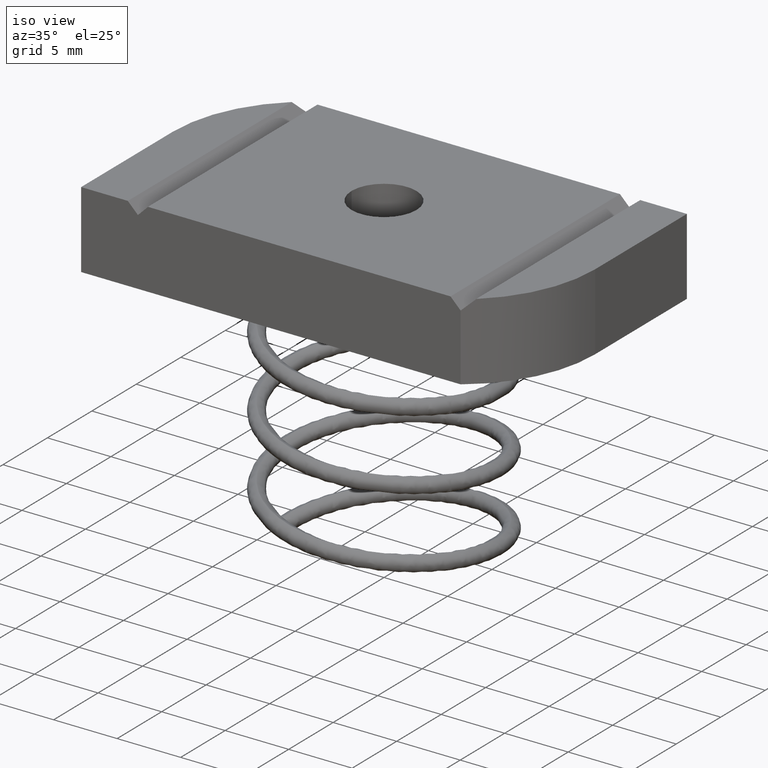
[diagram: clean part render]
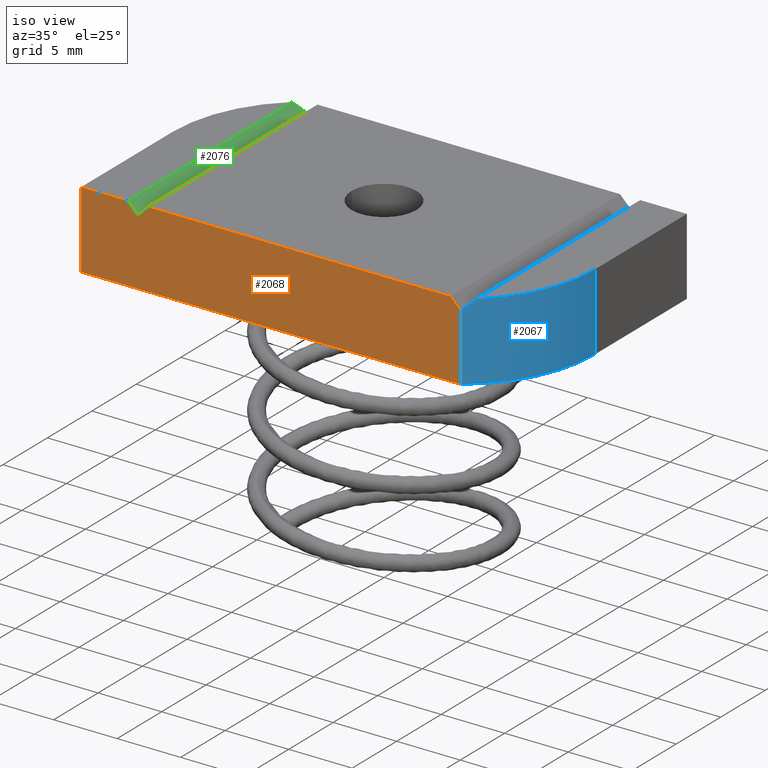
[diagram: same view with three faces highlighted in distinct colors, each labeled with its STEP entity id]
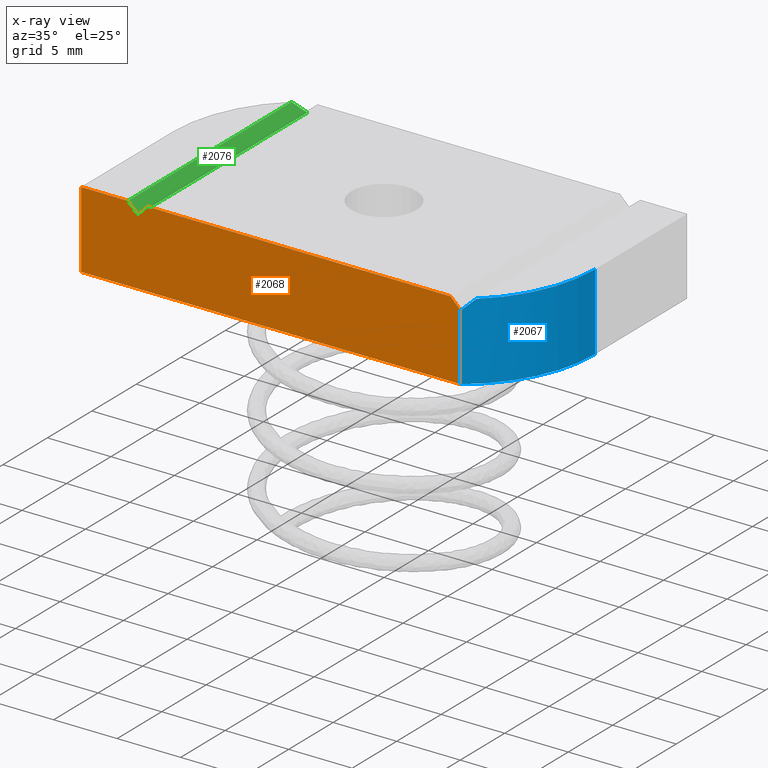
[diagram: x-ray of the same camera — body ghosted, the three highlighted faces saturated]
A machine part, iso view with three faces highlighted in distinct colors.
The next image is the same camera in x-ray (body ghosted, the three faces saturated) — at least one of them is partly hidden behind the body in this view.
Their STEP definitions:

[orange] entity #2068 — the highlighted planar face has unit normal (0, 1, 0).
#78 = CARTESIAN_POINT ( 'NONE',  ( -0.6760000000000001600, -0.3750000000000000600, 0.1189999999999999900 ) ) ;
#80 = PLANE ( 'NONE',  #1320 ) ;
#83 = DIRECTION ( 'NONE',  ( 0.0000000000000000000, 1.000000000000000000, 0.0000000000000000000 ) ) ;
#84 = DIRECTION ( 'NONE',  ( 0.0000000000000000000, -0.0000000000000000000, 1.000000000000000000 ) ) ;
#201 = EDGE_CURVE ( 'NONE', #1017, #1014, #753, .T. ) ;
#210 = ORIENTED_EDGE ( 'NONE', *, *, #1328, .T. ) ;
#215 = ORIENTED_EDGE ( 'NONE', *, *, #1329, .F. ) ;
#242 = ORIENTED_EDGE ( 'NONE', *, *, #201, .T. ) ;
#269 = EDGE_LOOP ( 'NONE', ( #583, #578, #590, #611, #748, #215, #242, #210 ) ) ;
#578 = ORIENTED_EDGE ( 'NONE', *, *, #772, .F. ) ;
#583 = ORIENTED_EDGE ( 'NONE', *, *, #1324, .F. ) ;
#590 = ORIENTED_EDGE ( 'NONE', *, *, #1973, .F. ) ;
#611 = ORIENTED_EDGE ( 'NONE', *, *, #1326, .F. ) ;
#634 = VECTOR ( 'NONE', #989, 39.37007874015748900 ) ;
#722 = LINE ( 'NONE', #1156, #723 ) ;
#723 = VECTOR ( 'NONE', #1057, 39.37007874015748100 ) ;
#724 = LINE ( 'NONE', #1147, #1751 ) ;
#727 = LINE ( 'NONE', #1078, #729 ) ;
#728 = LINE ( 'NONE', #1081, #732 ) ;
#729 = VECTOR ( 'NONE', #879, 39.37007874015748100 ) ;
#732 = VECTOR ( 'NONE', #909, 39.37007874015748900 ) ;
#733 = LINE ( 'NONE', #1158, #634 ) ;
#743 = VECTOR ( 'NONE', #986, 39.37007874015748100 ) ;
#748 = ORIENTED_EDGE ( 'NONE', *, *, #1327, .F. ) ;
#753 = LINE ( 'NONE', #1082, #743 ) ;
#772 = EDGE_CURVE ( 'NONE', #1012, #918, #722, .T. ) ;
#787 = DIRECTION ( 'NONE',  ( 1.000000000000000000, 0.0000000000000000000, 0.0000000000000000000 ) ) ;
#788 = CARTESIAN_POINT ( 'NONE',  ( -0.6760000000000001600, -0.3750000000000000600, 0.1189999999999999900 ) ) ;
#879 = DIRECTION ( 'NONE',  ( -0.0000000000000000000, -0.0000000000000000000, -1.000000000000000000 ) ) ;
#905 = CARTESIAN_POINT ( 'NONE',  ( -0.5000000000000000000, -0.3750000000000000600, 0.08774999999999996700 ) ) ;
#909 = DIRECTION ( 'NONE',  ( 0.7071067811865476800, 0.0000000000000000000, 0.7071067811865472400 ) ) ;
#917 = VERTEX_POINT ( 'NONE', #905 ) ;
#918 = VERTEX_POINT ( 'NONE', #1091 ) ;
#928 = VERTEX_POINT ( 'NONE', #1039 ) ;
#933 = VERTEX_POINT ( 'NONE', #1097 ) ;
#986 = DIRECTION ( 'NONE',  ( -0.0000000000000000000, -0.0000000000000000000, -1.000000000000000000 ) ) ;
#989 = DIRECTION ( 'NONE',  ( 0.7071067811865440200, 0.0000000000000000000, -0.7071067811865509000 ) ) ;
#998 = CARTESIAN_POINT ( 'NONE',  ( -0.6760000000000001600, -0.3750000000000000600, 0.1189999999999999900 ) ) ;
#1008 = DIRECTION ( 'NONE',  ( 1.000000000000000000, 0.0000000000000000000, 0.0000000000000000000 ) ) ;
#1012 = VERTEX_POINT ( 'NONE', #1164 ) ;
#1014 = VERTEX_POINT ( 'NONE', #1176 ) ;
#1017 = VERTEX_POINT ( 'NONE', #1127 ) ;
#1019 = VERTEX_POINT ( 'NONE', #1077 ) ;
#1039 = CARTESIAN_POINT ( 'NONE',  ( 0.5000000000000001100, -0.3750000000000000600, -0.1189999999999999900 ) ) ;
#1057 = DIRECTION ( 'NONE',  ( 0.7071067811865465700, 0.0000000000000000000, -0.7071067811865484600 ) ) ;
#1077 = CARTESIAN_POINT ( 'NONE',  ( -0.4687499999999999400, -0.3750000000000000600, 0.1189999999999999900 ) ) ;
#1078 = CARTESIAN_POINT ( 'NONE',  ( 0.5000000000000001100, -0.3750000000000000600, 0.1189999999999999900 ) ) ;
#1081 = CARTESIAN_POINT ( 'NONE',  ( -0.5000000000000000000, -0.3750000000000000600, 0.08774999999999996700 ) ) ;
#1082 = CARTESIAN_POINT ( 'NONE',  ( -0.6760000000000001600, -0.3750000000000000600, 0.1189999999999999900 ) ) ;
#1091 = CARTESIAN_POINT ( 'NONE',  ( 0.5000000000000001100, -0.3750000000000000600, 0.08774999999999987000 ) ) ;
#1097 = CARTESIAN_POINT ( 'NONE',  ( -0.5312499999999996700, -0.3750000000000000600, 0.1189999999999999800 ) ) ;
#1127 = CARTESIAN_POINT ( 'NONE',  ( -0.6760000000000001600, -0.3750000000000000600, 0.1189999999999999900 ) ) ;
#1147 = CARTESIAN_POINT ( 'NONE',  ( -0.6760000000000001600, -0.3750000000000000600, -0.1189999999999999900 ) ) ;
#1154 = DIRECTION ( 'NONE',  ( 1.000000000000000000, 0.0000000000000000000, 0.0000000000000000000 ) ) ;
#1156 = CARTESIAN_POINT ( 'NONE',  ( 0.4687499999999999400, -0.3750000000000000600, 0.1189999999999999900 ) ) ;
#1158 = CARTESIAN_POINT ( 'NONE',  ( -0.5312499999999996700, -0.3750000000000000600, 0.1189999999999999800 ) ) ;
#1164 = CARTESIAN_POINT ( 'NONE',  ( 0.4687499999999999400, -0.3750000000000000600, 0.1189999999999999900 ) ) ;
#1176 = CARTESIAN_POINT ( 'NONE',  ( -0.6760000000000001600, -0.3750000000000000600, -0.1189999999999999900 ) ) ;
#1320 = AXIS2_PLACEMENT_3D ( 'NONE', #78, #83, #84 ) ;
#1324 = EDGE_CURVE ( 'NONE', #918, #928, #727, .T. ) ;
#1326 = EDGE_CURVE ( 'NONE', #917, #1019, #728, .T. ) ;
#1327 = EDGE_CURVE ( 'NONE', #933, #917, #733, .T. ) ;
#1328 = EDGE_CURVE ( 'NONE', #1014, #928, #724, .T. ) ;
#1329 = EDGE_CURVE ( 'NONE', #1017, #933, #1752, .T. ) ;
#1751 = VECTOR ( 'NONE', #1154, 39.37007874015748100 ) ;
#1752 = LINE ( 'NONE', #998, #1753 ) ;
#1753 = VECTOR ( 'NONE', #1008, 39.37007874015748100 ) ;
#1759 = LINE ( 'NONE', #788, #1760 ) ;
#1760 = VECTOR ( 'NONE', #787, 39.37007874015748100 ) ;
#1973 = EDGE_CURVE ( 'NONE', #1019, #1012, #1759, .T. ) ;
#1996 = FACE_OUTER_BOUND ( 'NONE', #269, .T. ) ;
#2068 = ADVANCED_FACE ( 'NONE', ( #1996 ), #80, .F. ) ;

[blue] entity #2067 — the highlighted cylindrical surface (partial cylindrical patch) has radius 10.7742 mm, axis along (-0, -0, -1).
#66 = DIRECTION ( 'NONE',  ( -1.000000000000000000, 0.0000000000000000000, 0.0000000000000000000 ) ) ;
#74 = CARTESIAN_POINT ( 'NONE',  ( 0.2518181818181817700, -0.03099999999999995500, 0.1189999999999999900 ) ) ;
#75 = DIRECTION ( 'NONE',  ( -0.0000000000000000000, -0.0000000000000000000, -1.000000000000000000 ) ) ;
#196 = EDGE_CURVE ( 'NONE', #944, #1030, #1311, .T. ) ;
#202 = EDGE_CURVE ( 'NONE', #928, #945, #621, .T. ) ;
#212 = ORIENTED_EDGE ( 'NONE', *, *, #196, .F. ) ;
#240 = ORIENTED_EDGE ( 'NONE', *, *, #756, .F. ) ;
#254 = EDGE_LOOP ( 'NONE', ( #212, #607, #276, #580, #240 ) ) ;
#276 = ORIENTED_EDGE ( 'NONE', *, *, #1324, .T. ) ;
#580 = ORIENTED_EDGE ( 'NONE', *, *, #202, .T. ) ;
#607 = ORIENTED_EDGE ( 'NONE', *, *, #1333, .T. ) ;
#621 = CIRCLE ( 'NONE', #2077, 0.4241818181818182700 ) ;
#625 = LINE ( 'NONE', #964, #630 ) ;
#630 = VECTOR ( 'NONE', #965, 39.37007874015748100 ) ;
#727 = LINE ( 'NONE', #1078, #729 ) ;
#729 = VECTOR ( 'NONE', #879, 39.37007874015748100 ) ;
#756 = EDGE_CURVE ( 'NONE', #1030, #945, #625, .T. ) ;
#792 = CARTESIAN_POINT ( 'NONE',  ( 0.5000000000000001100, -0.3750000000000000600, 0.08774999999999987000 ) ) ;
#793 = CARTESIAN_POINT ( 'NONE',  ( 0.5108032315010989600, -0.3672059138483087000, 0.09855323150109894500 ) ) ;
#794 = CARTESIAN_POINT ( 'NONE',  ( 0.5212276018830124300, -0.3589119345894123400, 0.1089776018830126100 ) ) ;
#813 = CARTESIAN_POINT ( 'NONE',  ( 0.2518181818181817700, -0.03099999999999995500, 0.1189999999999999900 ) ) ;
#879 = DIRECTION ( 'NONE',  ( -0.0000000000000000000, -0.0000000000000000000, -1.000000000000000000 ) ) ;
#918 = VERTEX_POINT ( 'NONE', #1091 ) ;
#928 = VERTEX_POINT ( 'NONE', #1039 ) ;
#944 = VERTEX_POINT ( 'NONE', #1098 ) ;
#945 = VERTEX_POINT ( 'NONE', #1046 ) ;
#964 = CARTESIAN_POINT ( 'NONE',  ( 0.6760000000000001600, -0.03099999999999990600, 0.1189999999999999900 ) ) ;
#965 = DIRECTION ( 'NONE',  ( -0.0000000000000000000, -0.0000000000000000000, -1.000000000000000000 ) ) ;
#991 = DIRECTION ( 'NONE',  ( 0.0000000000000000000, 0.0000000000000000000, 1.000000000000000000 ) ) ;
#992 = DIRECTION ( 'NONE',  ( -1.000000000000000000, 0.0000000000000000000, 0.0000000000000000000 ) ) ;
#1030 = VERTEX_POINT ( 'NONE', #1178 ) ;
#1039 = CARTESIAN_POINT ( 'NONE',  ( 0.5000000000000001100, -0.3750000000000000600, -0.1189999999999999900 ) ) ;
#1046 = CARTESIAN_POINT ( 'NONE',  ( 0.6760000000000001600, -0.03099999999999990600, -0.1189999999999999900 ) ) ;
#1078 = CARTESIAN_POINT ( 'NONE',  ( 0.5000000000000001100, -0.3750000000000000600, 0.1189999999999999900 ) ) ;
#1080 = DIRECTION ( 'NONE',  ( 0.0000000000000000000, 0.0000000000000000000, 1.000000000000000000 ) ) ;
#1083 = CARTESIAN_POINT ( 'NONE',  ( 0.2518181818181817700, -0.03099999999999995500, -0.1189999999999999900 ) ) ;
#1091 = CARTESIAN_POINT ( 'NONE',  ( 0.5000000000000001100, -0.3750000000000000600, 0.08774999999999987000 ) ) ;
#1098 = CARTESIAN_POINT ( 'NONE',  ( 0.5312499999999997800, -0.3501364502272287200, 0.1189999999999999900 ) ) ;
#1114 = CARTESIAN_POINT ( 'NONE',  ( 0.5312499999999997800, -0.3501364502272287200, 0.1189999999999999900 ) ) ;
#1162 = DIRECTION ( 'NONE',  ( -1.000000000000000000, 0.0000000000000000000, 0.0000000000000000000 ) ) ;
#1178 = CARTESIAN_POINT ( 'NONE',  ( 0.6760000000000001600, -0.03099999999999990600, 0.1189999999999999900 ) ) ;
#1311 = CIRCLE ( 'NONE', #1335, 0.4241818181818182700 ) ;
#1319 = AXIS2_PLACEMENT_3D ( 'NONE', #74, #75, #66 ) ;
#1324 = EDGE_CURVE ( 'NONE', #918, #928, #727, .T. ) ;
#1333 = EDGE_CURVE ( 'NONE', #944, #918, #2050, .T. ) ;
#1335 = AXIS2_PLACEMENT_3D ( 'NONE', #813, #991, #992 ) ;
#1994 = FACE_OUTER_BOUND ( 'NONE', #254, .T. ) ;
#2001 = CYLINDRICAL_SURFACE ( 'NONE', #1319, 0.4241818181818182700 ) ;
#2050 =( BOUNDED_CURVE ( )  B_SPLINE_CURVE ( 3, ( #1114, #794, #793, #792 ),
 .UNSPECIFIED., .F., .T. ) 
 B_SPLINE_CURVE_WITH_KNOTS ( ( 4, 4 ),
 ( 3.993226455637453500, 4.087405860915651200 ),
 .UNSPECIFIED. ) 
 CURVE ( )  GEOMETRIC_REPRESENTATION_ITEM ( )  RATIONAL_B_SPLINE_CURVE ( ( 1.000000000000000000, 0.9992609898761521900, 0.9992609898761521900, 1.000000000000000000 ) ) 
 REPRESENTATION_ITEM ( '' )  );
#2067 = ADVANCED_FACE ( 'NONE', ( #1994 ), #2001, .T. ) ;
#2077 = AXIS2_PLACEMENT_3D ( 'NONE', #1083, #1080, #1162 ) ;

[green] entity #2076 — the highlighted planar face has unit normal (-0.7071, 0, -0.7071).
#223 = ORIENTED_EDGE ( 'NONE', *, *, #767, .F. ) ;
#230 = ORIENTED_EDGE ( 'NONE', *, *, #760, .F. ) ;
#235 = ORIENTED_EDGE ( 'NONE', *, *, #769, .F. ) ;
#274 = EDGE_LOOP ( 'NONE', ( #235, #275, #230, #223 ) ) ;
#275 = ORIENTED_EDGE ( 'NONE', *, *, #1327, .T. ) ;
#627 = LINE ( 'NONE', #966, #639 ) ;
#634 = VECTOR ( 'NONE', #989, 39.37007874015748900 ) ;
#639 = VECTOR ( 'NONE', #972, 39.37007874015748100 ) ;
#717 = LINE ( 'NONE', #993, #718 ) ;
#718 = VECTOR ( 'NONE', #1053, 39.37007874015748100 ) ;
#733 = LINE ( 'NONE', #1158, #634 ) ;
#760 = EDGE_CURVE ( 'NONE', #922, #917, #627, .T. ) ;
#767 = EDGE_CURVE ( 'NONE', #1024, #922, #2052, .T. ) ;
#769 = EDGE_CURVE ( 'NONE', #933, #1024, #717, .T. ) ;
#905 = CARTESIAN_POINT ( 'NONE',  ( -0.5000000000000000000, -0.3750000000000000600, 0.08774999999999996700 ) ) ;
#917 = VERTEX_POINT ( 'NONE', #905 ) ;
#922 = VERTEX_POINT ( 'NONE', #1094 ) ;
#933 = VERTEX_POINT ( 'NONE', #1097 ) ;
#959 = CARTESIAN_POINT ( 'NONE',  ( -0.5212276018830123100, 0.3589119345894124500, 0.1089776018830125700 ) ) ;
#966 = CARTESIAN_POINT ( 'NONE',  ( -0.5000000000000000000, 0.3750000000000000600, 0.08774999999999996700 ) ) ;
#972 = DIRECTION ( 'NONE',  ( -0.0000000000000000000, -1.000000000000000000, -0.0000000000000000000 ) ) ;
#989 = DIRECTION ( 'NONE',  ( 0.7071067811865440200, 0.0000000000000000000, -0.7071067811865509000 ) ) ;
#993 = CARTESIAN_POINT ( 'NONE',  ( -0.5312499999999996700, -0.03099999999999995500, 0.1189999999999999900 ) ) ;
#1024 = VERTEX_POINT ( 'NONE', #1171 ) ;
#1042 = CARTESIAN_POINT ( 'NONE',  ( -0.5108032315010988500, 0.3672059138483088100, 0.09855323150109901500 ) ) ;
#1051 = CARTESIAN_POINT ( 'NONE',  ( -0.5000000000000000000, 0.3750000000000000600, 0.08774999999999996700 ) ) ;
#1053 = DIRECTION ( 'NONE',  ( 0.0000000000000000000, 1.000000000000000000, 0.0000000000000000000 ) ) ;
#1079 = CARTESIAN_POINT ( 'NONE',  ( -0.5312499999999996700, 0.3501364502272289500, 0.1189999999999999900 ) ) ;
#1094 = CARTESIAN_POINT ( 'NONE',  ( -0.5000000000000000000, 0.3750000000000000600, 0.08774999999999996700 ) ) ;
#1097 = CARTESIAN_POINT ( 'NONE',  ( -0.5312499999999996700, -0.3750000000000000600, 0.1189999999999999800 ) ) ;
#1158 = CARTESIAN_POINT ( 'NONE',  ( -0.5312499999999996700, -0.3750000000000000600, 0.1189999999999999800 ) ) ;
#1171 = CARTESIAN_POINT ( 'NONE',  ( -0.5312499999999996700, 0.3501364502272289500, 0.1189999999999999900 ) ) ;
#1268 = CARTESIAN_POINT ( 'NONE',  ( -0.5312499999999996700, 0.3750000000000000600, 0.1189999999999999800 ) ) ;
#1277 = PLANE ( 'NONE',  #1975 ) ;
#1281 = DIRECTION ( 'NONE',  ( -0.7071067811865509000, 0.0000000000000000000, -0.7071067811865441300 ) ) ;
#1282 = DIRECTION ( 'NONE',  ( -0.7071067811865441300, 0.0000000000000000000, 0.7071067811865509000 ) ) ;
#1327 = EDGE_CURVE ( 'NONE', #933, #917, #733, .T. ) ;
#1975 = AXIS2_PLACEMENT_3D ( 'NONE', #1268, #1281, #1282 ) ;
#2002 = FACE_OUTER_BOUND ( 'NONE', #274, .T. ) ;
#2052 =( BOUNDED_CURVE ( )  B_SPLINE_CURVE ( 3, ( #1079, #959, #1042, #1051 ),
 .UNSPECIFIED., .F., .T. ) 
 B_SPLINE_CURVE_WITH_KNOTS ( ( 4, 4 ),
 ( 3.993226455637453900, 4.087405860915651200 ),
 .UNSPECIFIED. ) 
 CURVE ( )  GEOMETRIC_REPRESENTATION_ITEM ( )  RATIONAL_B_SPLINE_CURVE ( ( 1.000000000000000000, 0.9992609898761521900, 0.9992609898761521900, 1.000000000000000000 ) ) 
 REPRESENTATION_ITEM ( '' )  );
#2076 = ADVANCED_FACE ( 'NONE', ( #2002 ), #1277, .F. ) ;